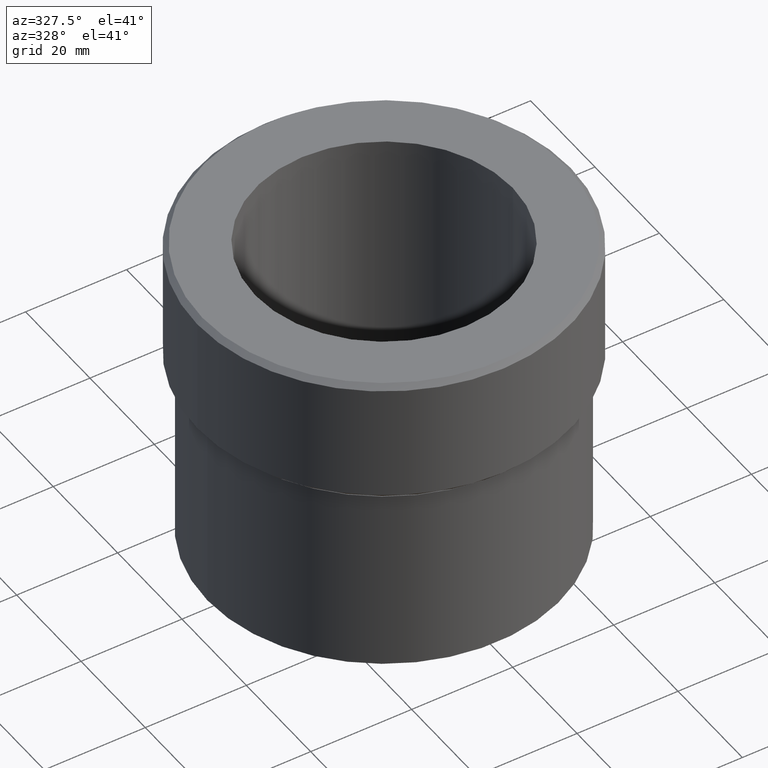
[diagram: clean part render]
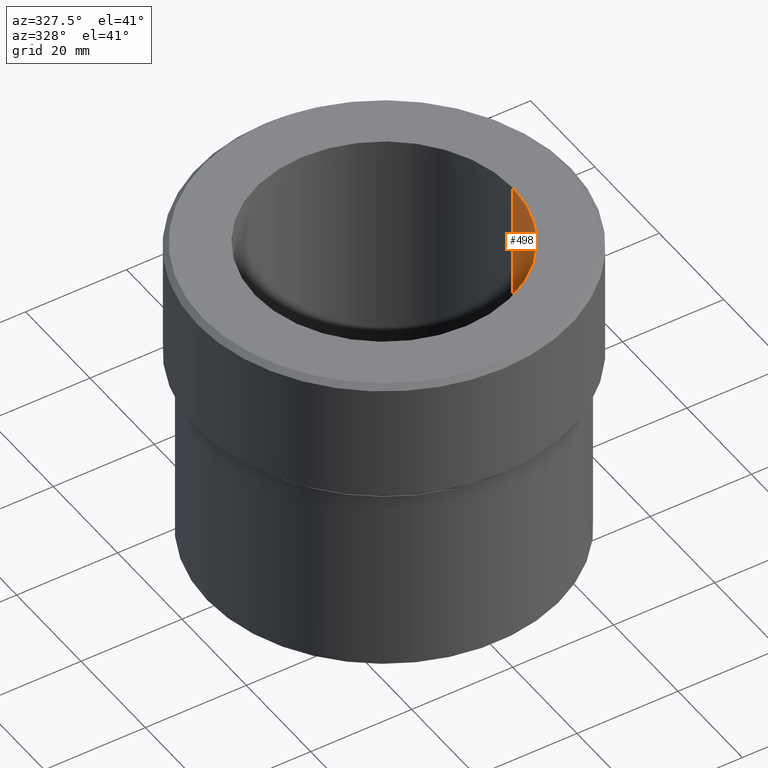
[diagram: same view with one face highlighted and labeled with its STEP entity id]
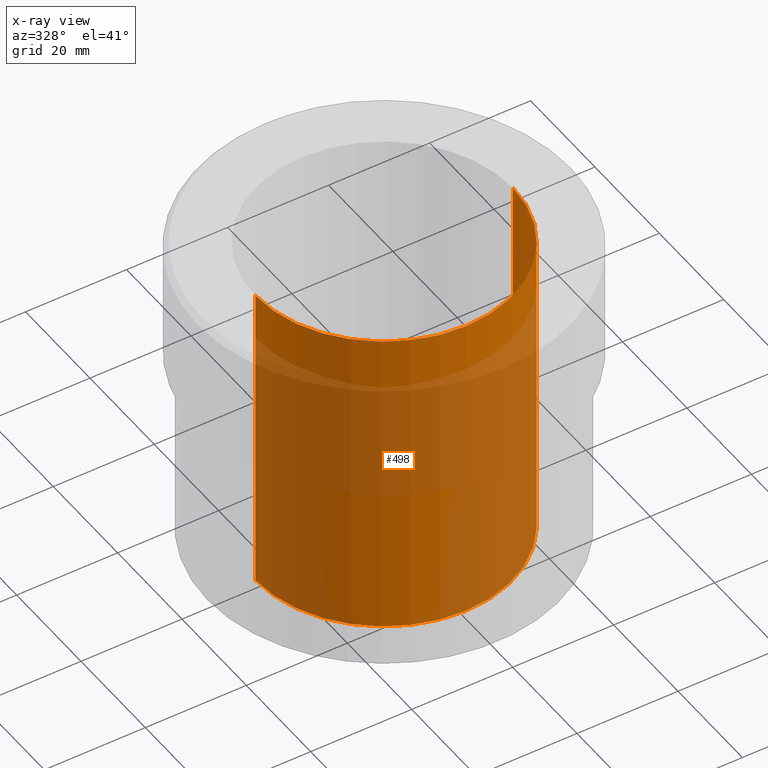
[diagram: x-ray of the same camera — body ghosted, the highlighted face saturated]
A machine part, auxiliary view. The second image highlights one B-rep face of the part: STEP entity #498.
The next image is the same camera in x-ray: the body ghosted, the highlighted face saturated — about 64% of this face is hidden behind the body in this view.
In plain terms, the highlighted cylindrical surface (partial cylindrical patch) has radius 25.5 mm, axis along (-0, -0, 1).
Its self-contained STEP definition (entity closure, byte-faithful):
#1 = FACE_OUTER_BOUND ( 'NONE', #360, .T. ) ;
#12 = CARTESIAN_POINT ( 'NONE',  ( 25.50000000000000000, 0.000000000000000000, -63.00000000000000000 ) ) ;
#24 = ORIENTED_EDGE ( 'NONE', *, *, #231, .T. ) ;
#48 = CARTESIAN_POINT ( 'NONE',  ( 0.000000000000000000, 0.000000000000000000, -80.00000000000000000 ) ) ;
#66 = CARTESIAN_POINT ( 'NONE',  ( 25.50000000000000000, 0.000000000000000000, 0.000000000000000000 ) ) ;
#69 = EDGE_CURVE ( 'NONE', #313, #274, #444, .T. ) ;
#70 = LINE ( 'NONE', #232, #412 ) ;
#74 = VECTOR ( 'NONE', #499, 1000.000000000000000 ) ;
#76 = CARTESIAN_POINT ( 'NONE',  ( -25.50000000000000000, 3.122849337825750222E-15, 0.000000000000000000 ) ) ;
#77 = VERTEX_POINT ( 'NONE', #12 ) ;
#108 = DIRECTION ( 'NONE',  ( -1.000000000000000000, 0.000000000000000000, 0.000000000000000000 ) ) ;
#111 = CARTESIAN_POINT ( 'NONE',  ( -25.50000000000000000, 3.122849337825750222E-15, -63.00000000000000000 ) ) ;
#149 = DIRECTION ( 'NONE',  ( 0.000000000000000000, 0.000000000000000000, -1.000000000000000000 ) ) ;
#161 = DIRECTION ( 'NONE',  ( -0.000000000000000000, -0.000000000000000000, 1.000000000000000000 ) ) ;
#182 = AXIS2_PLACEMENT_3D ( 'NONE', #298, #215, #380 ) ;
#204 = ORIENTED_EDGE ( 'NONE', *, *, #350, .F. ) ;
#206 = VERTEX_POINT ( 'NONE', #111 ) ;
#215 = DIRECTION ( 'NONE',  ( -0.000000000000000000, -0.000000000000000000, 1.000000000000000000 ) ) ;
#231 = EDGE_CURVE ( 'NONE', #77, #206, #344, .T. ) ;
#232 = CARTESIAN_POINT ( 'NONE',  ( 25.50000000000000000, 0.000000000000000000, -80.00000000000000000 ) ) ;
#240 = ORIENTED_EDGE ( 'NONE', *, *, #480, .T. ) ;
#274 = VERTEX_POINT ( 'NONE', #66 ) ;
#298 = CARTESIAN_POINT ( 'NONE',  ( 0.000000000000000000, 0.000000000000000000, 0.000000000000000000 ) ) ;
#313 = VERTEX_POINT ( 'NONE', #76 ) ;
#318 = LINE ( 'NONE', #330, #74 ) ;
#322 = DIRECTION ( 'NONE',  ( 1.000000000000000000, 0.000000000000000000, 0.000000000000000000 ) ) ;
#327 = AXIS2_PLACEMENT_3D ( 'NONE', #477, #149, #108 ) ;
#330 = CARTESIAN_POINT ( 'NONE',  ( -25.50000000000000000, 3.122849337825750222E-15, -80.00000000000000000 ) ) ;
#344 = CIRCLE ( 'NONE', #327, 25.50000000000000000 ) ;
#350 = EDGE_CURVE ( 'NONE', #77, #274, #70, .T. ) ;
#360 = EDGE_LOOP ( 'NONE', ( #24, #240, #500, #204 ) ) ;
#371 = AXIS2_PLACEMENT_3D ( 'NONE', #48, #161, #322 ) ;
#380 = DIRECTION ( 'NONE',  ( 1.000000000000000000, 0.000000000000000000, 0.000000000000000000 ) ) ;
#394 = DIRECTION ( 'NONE',  ( -0.000000000000000000, -0.000000000000000000, 1.000000000000000000 ) ) ;
#412 = VECTOR ( 'NONE', #394, 1000.000000000000000 ) ;
#416 = CYLINDRICAL_SURFACE ( 'NONE', #371, 25.50000000000000000 ) ;
#444 = CIRCLE ( 'NONE', #182, 25.50000000000000000 ) ;
#477 = CARTESIAN_POINT ( 'NONE',  ( 0.000000000000000000, 0.000000000000000000, -63.00000000000000000 ) ) ;
#480 = EDGE_CURVE ( 'NONE', #206, #313, #318, .T. ) ;
#498 = ADVANCED_FACE ( 'NONE', ( #1 ), #416, .F. ) ;
#499 = DIRECTION ( 'NONE',  ( -0.000000000000000000, -0.000000000000000000, 1.000000000000000000 ) ) ;
#500 = ORIENTED_EDGE ( 'NONE', *, *, #69, .T. ) ;